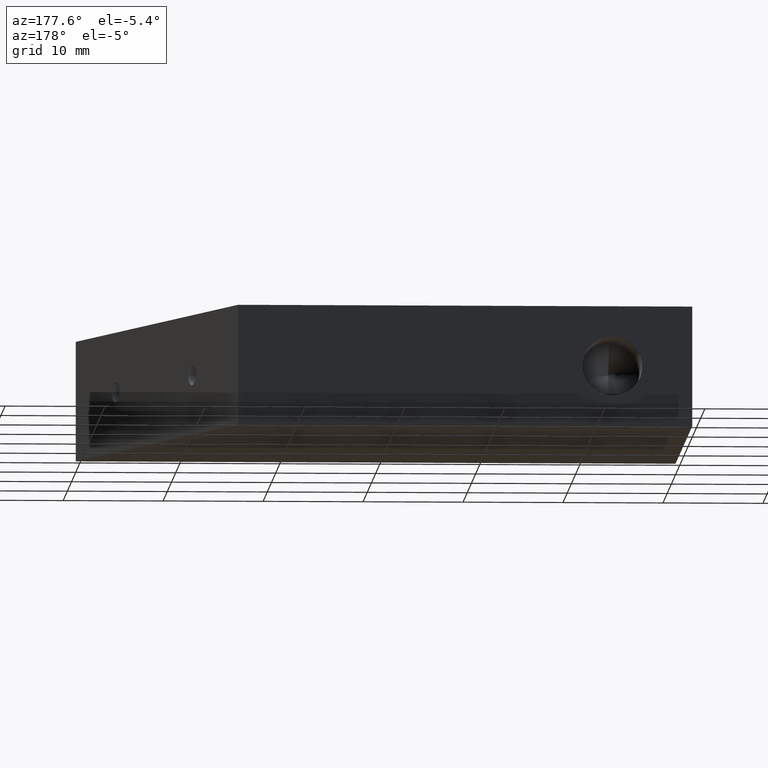
[diagram: clean part render]
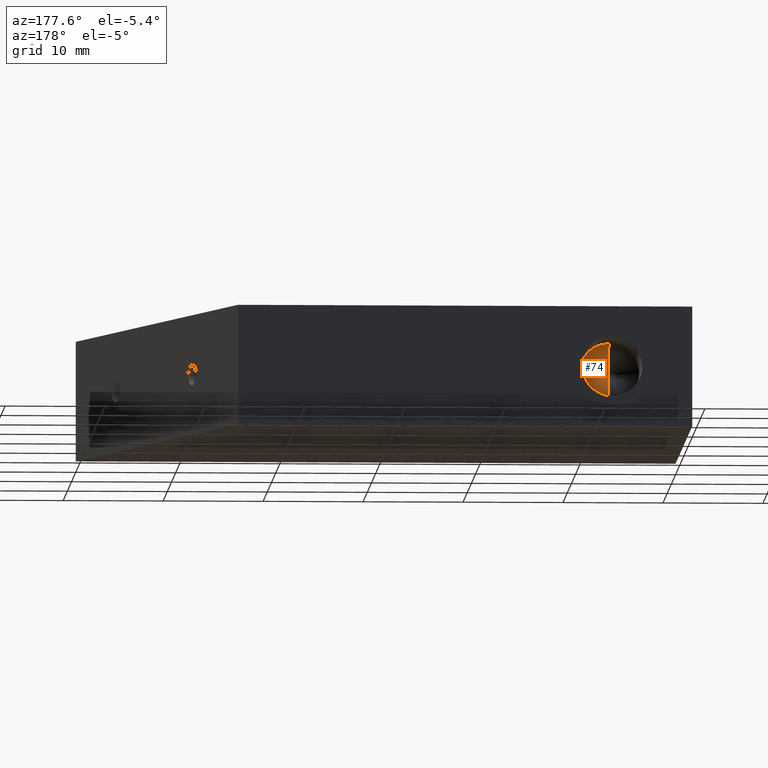
[diagram: same view with one face highlighted and labeled with its STEP entity id]
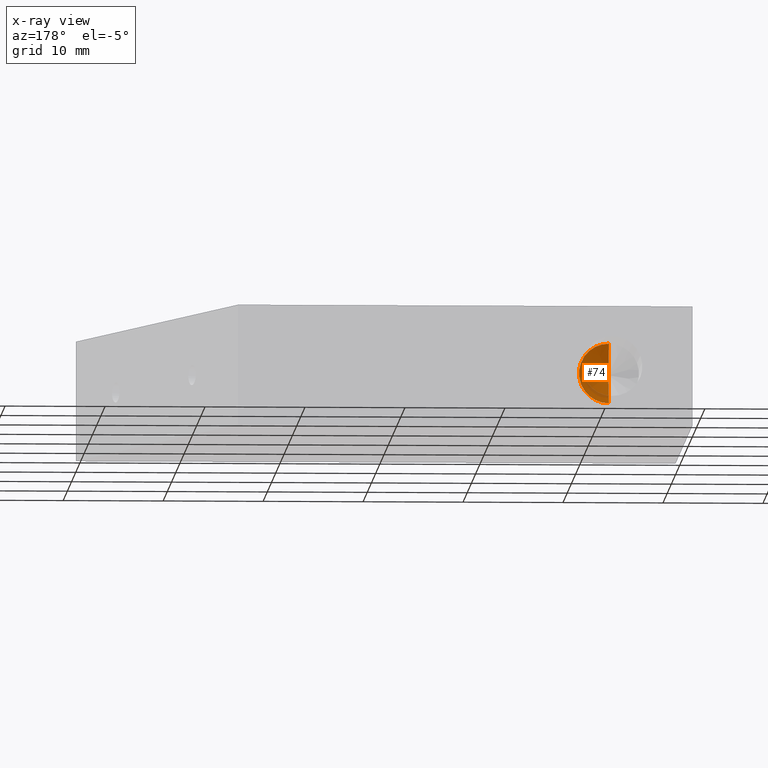
[diagram: x-ray of the same camera — body ghosted, the highlighted face saturated]
A machine part, auxiliary view. The second image highlights one B-rep face of the part: STEP entity #74.
The next image is the same camera in x-ray: the body ghosted, the highlighted face saturated — about 6% of this face is hidden behind the body in this view.
In plain terms, the highlighted conical surface has half-angle 59 deg.
Its self-contained STEP definition (entity closure, byte-faithful):
#14 = DIRECTION ( 'NONE',  ( 1.049727191138618600E-016, 0.5150380749100542700, -0.8571673007021122200 ) ) ;
#21 = CARTESIAN_POINT ( 'NONE',  ( 8.000000000000000000, 32.00000000000000000, -2.999999999999999100 ) ) ;
#32 = EDGE_CURVE ( 'NONE', #434, #427, #259, .T. ) ;
#50 = EDGE_CURVE ( 'NONE', #434, #336, #245, .T. ) ;
#73 = EDGE_CURVE ( 'NONE', #336, #427, #240, .T. ) ;
#74 = ADVANCED_FACE ( 'NONE', ( #244 ), #230, .F. ) ;
#90 = DIRECTION ( 'NONE',  ( 0.0000000000000000000, 0.5150380749100542700, 0.8571673007021122200 ) ) ;
#182 = CARTESIAN_POINT ( 'NONE',  ( 8.000000000000000000, 32.00000000000000000, 0.0000000000000000000 ) ) ;
#191 = CARTESIAN_POINT ( 'NONE',  ( 8.000000000000000000, 32.00000000000000000, 0.0000000000000000000 ) ) ;
#230 = CONICAL_SURFACE ( 'NONE', #359, 2.999999999999999100, 1.029744258676654300 ) ;
#240 = CIRCLE ( 'NONE', #365, 2.999999999999999100 ) ;
#244 = FACE_OUTER_BOUND ( 'NONE', #419, .T. ) ;
#245 = LINE ( 'NONE', #310, #249 ) ;
#249 = VECTOR ( 'NONE', #90, 1000.000000000000000 ) ;
#254 = VECTOR ( 'NONE', #14, 1000.000000000000000 ) ;
#256 = CARTESIAN_POINT ( 'NONE',  ( 8.000000000000000000, 32.00000000000000000, 2.999999999999999100 ) ) ;
#259 = LINE ( 'NONE', #21, #254 ) ;
#310 = CARTESIAN_POINT ( 'NONE',  ( 8.000000000000000000, 32.00000000000000000, 2.999999999999999100 ) ) ;
#336 = VERTEX_POINT ( 'NONE', #256 ) ;
#348 = ORIENTED_EDGE ( 'NONE', *, *, #73, .T. ) ;
#359 = AXIS2_PLACEMENT_3D ( 'NONE', #191, #508, #460 ) ;
#365 = AXIS2_PLACEMENT_3D ( 'NONE', #182, #456, #505 ) ;
#377 = CARTESIAN_POINT ( 'NONE',  ( 7.999999999999998200, 30.19741814291732100, 0.0000000000000000000 ) ) ;
#396 = CARTESIAN_POINT ( 'NONE',  ( 8.000000000000000000, 32.00000000000000000, -2.999999999999999100 ) ) ;
#419 = EDGE_LOOP ( 'NONE', ( #455, #435, #348 ) ) ;
#427 = VERTEX_POINT ( 'NONE', #396 ) ;
#434 = VERTEX_POINT ( 'NONE', #377 ) ;
#435 = ORIENTED_EDGE ( 'NONE', *, *, #50, .T. ) ;
#455 = ORIENTED_EDGE ( 'NONE', *, *, #32, .F. ) ;
#456 = DIRECTION ( 'NONE',  ( -0.0000000000000000000, 1.000000000000000000, -0.0000000000000000000 ) ) ;
#460 = DIRECTION ( 'NONE',  ( 0.0000000000000000000, 0.0000000000000000000, 1.000000000000000000 ) ) ;
#505 = DIRECTION ( 'NONE',  ( 0.0000000000000000000, 0.0000000000000000000, 1.000000000000000000 ) ) ;
#508 = DIRECTION ( 'NONE',  ( -0.0000000000000000000, 1.000000000000000000, -0.0000000000000000000 ) ) ;